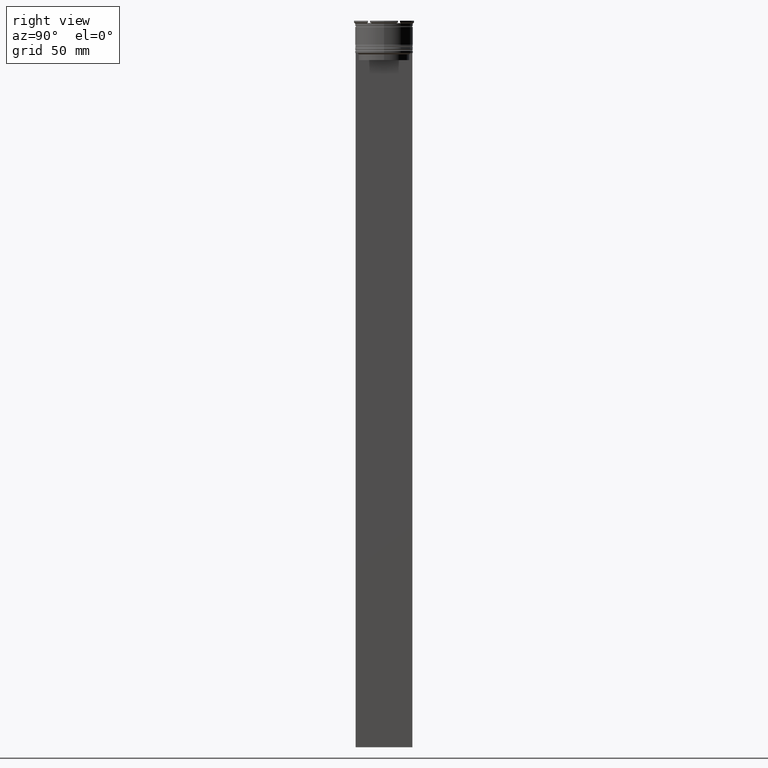
[diagram: clean part render]
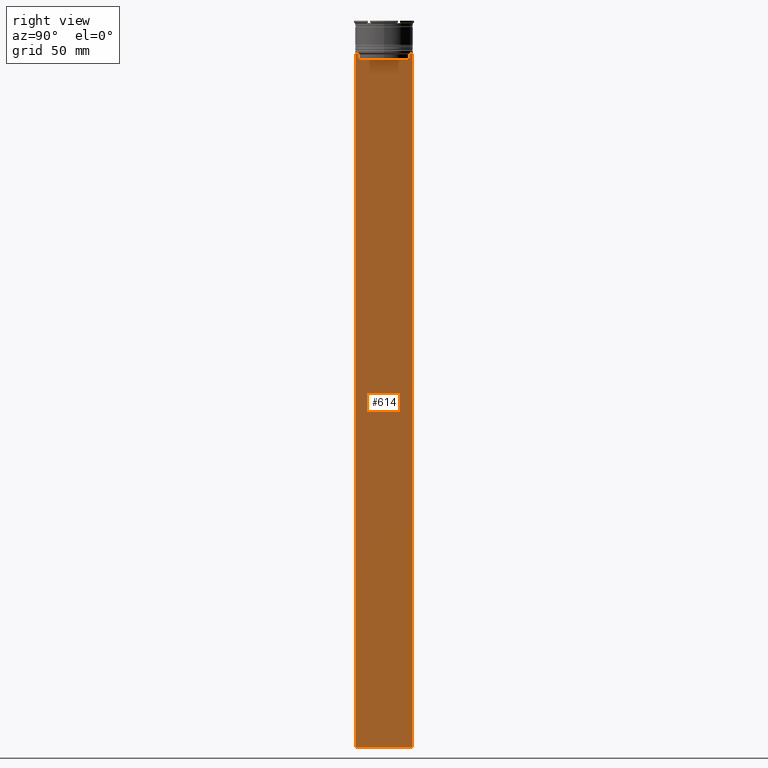
[diagram: same view with one face highlighted and labeled with its STEP entity id]
A machine part, right view. The second image highlights one B-rep face of the part: STEP entity #614.
In plain terms, the highlighted planar face has unit normal (-1, 0, 0).
Its self-contained STEP definition (entity closure, byte-faithful):
#8 = CARTESIAN_POINT ( 'NONE',  ( 0.5000000000000002220, -10.88852607105296322, -14.50000000000000000 ) ) ;
#17 = DIRECTION ( 'NONE',  ( -1.000000000000000000, 0.000000000000000000, 0.000000000000000000 ) ) ;
#20 = VERTEX_POINT ( 'NONE', #8 ) ;
#25 = LINE ( 'NONE', #627, #161 ) ;
#73 = CARTESIAN_POINT ( 'NONE',  ( 0.5000000000000002220, 10.88852607105296322, 0.000000000000000000 ) ) ;
#161 = VECTOR ( 'NONE', #2376, 1000.000000000000000 ) ;
#169 = CARTESIAN_POINT ( 'NONE',  ( 0.5000000000000002220, -12.25000000000000711, -14.00000000000000178 ) ) ;
#201 = ORIENTED_EDGE ( 'NONE', *, *, #673, .T. ) ;
#266 = ORIENTED_EDGE ( 'NONE', *, *, #1867, .T. ) ;
#336 = EDGE_CURVE ( 'NONE', #1416, #918, #1656, .T. ) ;
#376 = DIRECTION ( 'NONE',  ( 0.000000000000000000, 0.000000000000000000, -1.000000000000000000 ) ) ;
#455 = CARTESIAN_POINT ( 'NONE',  ( 0.5000000000000002220, -12.25000000000000711, -14.00000000000000178 ) ) ;
#479 = DIRECTION ( 'NONE',  ( 0.000000000000000000, 0.000000000000000000, -1.000000000000000000 ) ) ;
#492 = CARTESIAN_POINT ( 'NONE',  ( 0.5000000000000002220, -12.25000000000000711, 10.52039967047845792 ) ) ;
#493 = CARTESIAN_POINT ( 'NONE',  ( 0.5000000000000002220, -10.88852607105296144, -17.00000000000000000 ) ) ;
#503 = CARTESIAN_POINT ( 'NONE',  ( 0.5000000000000002220, 11.38902980942626719, -14.00000000000000178 ) ) ;
#512 = CARTESIAN_POINT ( 'NONE',  ( 0.5000000000000002220, -11.22219891450652973, -14.16667035398018903 ) ) ;
#529 = LINE ( 'NONE', #2049, #2341 ) ;
#561 = CARTESIAN_POINT ( 'NONE',  ( 0.5000000000000002220, -10.88852607105296322, 0.000000000000000000 ) ) ;
#569 = VERTEX_POINT ( 'NONE', #1537 ) ;
#601 = VERTEX_POINT ( 'NONE', #914 ) ;
#614 = ADVANCED_FACE ( 'NONE', ( #698 ), #2438, .F. ) ;
#624 = CARTESIAN_POINT ( 'NONE',  ( 0.5000000000000002220, 11.38902980942626719, -14.00000000000000178 ) ) ;
#627 = CARTESIAN_POINT ( 'NONE',  ( 0.5000000000000002220, -12.25000000000000711, -314.0000000000000000 ) ) ;
#631 = EDGE_CURVE ( 'NONE', #20, #601, #2673, .T. ) ;
#669 = EDGE_CURVE ( 'NONE', #1688, #20, #2330, .T. ) ;
#673 = EDGE_CURVE ( 'NONE', #918, #714, #978, .T. ) ;
#698 = FACE_OUTER_BOUND ( 'NONE', #1552, .T. ) ;
#714 = VERTEX_POINT ( 'NONE', #2100 ) ;
#833 = CARTESIAN_POINT ( 'NONE',  ( 0.5000000000000002220, 10.88852607105296144, -17.00000000000000000 ) ) ;
#914 = CARTESIAN_POINT ( 'NONE',  ( 0.5000000000000002220, -11.38902980942626719, -14.00000000000000178 ) ) ;
#918 = VERTEX_POINT ( 'NONE', #624 ) ;
#925 = DIRECTION ( 'NONE',  ( 0.000000000000000000, 0.000000000000000000, 1.000000000000000000 ) ) ;
#935 = DIRECTION ( 'NONE',  ( 0.000000000000000000, 0.000000000000000000, -1.000000000000000000 ) ) ;
#942 = DIRECTION ( 'NONE',  ( -0.000000000000000000, -0.000000000000000000, 1.000000000000000000 ) ) ;
#978 = B_SPLINE_CURVE_WITH_KNOTS ( 'NONE', 3,
 ( #503, #2724, #2505, #1372 ),
 .UNSPECIFIED., .F., .F.,
 ( 4, 4 ),
 ( 0.01935560801904634073, 0.02006307108468586772 ),
 .UNSPECIFIED. ) ;
#1024 = CARTESIAN_POINT ( 'NONE',  ( 0.5000000000000002220, 10.90000000000000213, -17.00000000000000000 ) ) ;
#1044 = VERTEX_POINT ( 'NONE', #2768 ) ;
#1053 = CARTESIAN_POINT ( 'NONE',  ( 0.5000000000000002220, 12.24999999999999289, -14.00000000000000178 ) ) ;
#1085 = ORIENTED_EDGE ( 'NONE', *, *, #1803, .T. ) ;
#1287 = EDGE_CURVE ( 'NONE', #714, #2359, #1812, .T. ) ;
#1372 = CARTESIAN_POINT ( 'NONE',  ( 0.5000000000000002220, 10.88852607105296322, -14.50000000000000000 ) ) ;
#1374 = DIRECTION ( 'NONE',  ( 0.000000000000000000, -1.000000000000000000, 0.000000000000000000 ) ) ;
#1416 = VERTEX_POINT ( 'NONE', #1053 ) ;
#1466 = CARTESIAN_POINT ( 'NONE',  ( 0.5000000000000002220, -10.88852607105296322, -14.50000000000000000 ) ) ;
#1471 = VERTEX_POINT ( 'NONE', #455 ) ;
#1477 = ORIENTED_EDGE ( 'NONE', *, *, #631, .T. ) ;
#1481 = VECTOR ( 'NONE', #1686, 1000.000000000000000 ) ;
#1537 = CARTESIAN_POINT ( 'NONE',  ( 0.5000000000000002220, -12.25000000000000711, -314.0000000000000000 ) ) ;
#1552 = EDGE_LOOP ( 'NONE', ( #1729, #201, #2013, #2681, #1898, #1477, #2233, #1085, #266, #1806 ) ) ;
#1656 = LINE ( 'NONE', #169, #1481 ) ;
#1686 = DIRECTION ( 'NONE',  ( 0.000000000000000000, -1.000000000000000000, 0.000000000000000000 ) ) ;
#1688 = VERTEX_POINT ( 'NONE', #493 ) ;
#1729 = ORIENTED_EDGE ( 'NONE', *, *, #336, .T. ) ;
#1754 = VECTOR ( 'NONE', #376, 1000.000000000000000 ) ;
#1803 = EDGE_CURVE ( 'NONE', #1471, #569, #2494, .T. ) ;
#1806 = ORIENTED_EDGE ( 'NONE', *, *, #2331, .F. ) ;
#1812 = LINE ( 'NONE', #73, #2433 ) ;
#1867 = EDGE_CURVE ( 'NONE', #569, #1044, #25, .T. ) ;
#1874 = CARTESIAN_POINT ( 'NONE',  ( 0.5000000000000002220, -11.38902980942626719, -14.00000000000000178 ) ) ;
#1897 = DIRECTION ( 'NONE',  ( 0.000000000000000000, -1.000000000000000000, 0.000000000000000000 ) ) ;
#1898 = ORIENTED_EDGE ( 'NONE', *, *, #669, .T. ) ;
#1906 = LINE ( 'NONE', #2769, #2391 ) ;
#1982 = VECTOR ( 'NONE', #942, 1000.000000000000000 ) ;
#2013 = ORIENTED_EDGE ( 'NONE', *, *, #1287, .T. ) ;
#2049 = CARTESIAN_POINT ( 'NONE',  ( 0.5000000000000002220, -12.25000000000000711, -14.00000000000000178 ) ) ;
#2100 = CARTESIAN_POINT ( 'NONE',  ( 0.5000000000000002220, 10.88852607105296322, -14.50000000000000000 ) ) ;
#2233 = ORIENTED_EDGE ( 'NONE', *, *, #2455, .T. ) ;
#2295 = LINE ( 'NONE', #1024, #2567 ) ;
#2320 = CARTESIAN_POINT ( 'NONE',  ( 0.5000000000000002220, -12.25000000000000711, 10.52039967047845792 ) ) ;
#2330 = LINE ( 'NONE', #561, #1982 ) ;
#2331 = EDGE_CURVE ( 'NONE', #1416, #1044, #1906, .T. ) ;
#2341 = VECTOR ( 'NONE', #1374, 1000.000000000000000 ) ;
#2359 = VERTEX_POINT ( 'NONE', #833 ) ;
#2376 = DIRECTION ( 'NONE',  ( 0.000000000000000000, 1.000000000000000000, 0.000000000000000000 ) ) ;
#2384 = AXIS2_PLACEMENT_3D ( 'NONE', #492, #17, #925 ) ;
#2391 = VECTOR ( 'NONE', #479, 1000.000000000000000 ) ;
#2433 = VECTOR ( 'NONE', #935, 1000.000000000000000 ) ;
#2438 = PLANE ( 'NONE',  #2384 ) ;
#2455 = EDGE_CURVE ( 'NONE', #601, #1471, #529, .T. ) ;
#2494 = LINE ( 'NONE', #2320, #1754 ) ;
#2505 = CARTESIAN_POINT ( 'NONE',  ( 0.5000000000000002220, 11.05536450345590538, -14.33333719074559376 ) ) ;
#2524 = CARTESIAN_POINT ( 'NONE',  ( 0.5000000000000002220, -11.05536450423839057, -14.33333718996393280 ) ) ;
#2567 = VECTOR ( 'NONE', #1897, 1000.000000000000000 ) ;
#2659 = EDGE_CURVE ( 'NONE', #2359, #1688, #2295, .T. ) ;
#2673 = B_SPLINE_CURVE_WITH_KNOTS ( 'NONE', 3,
 ( #1466, #2524, #512, #1874 ),
 .UNSPECIFIED., .F., .F.,
 ( 4, 4 ),
 ( 0.05041323384703228633, 0.05112713601261608537 ),
 .UNSPECIFIED. ) ;
#2681 = ORIENTED_EDGE ( 'NONE', *, *, #2659, .T. ) ;
#2724 = CARTESIAN_POINT ( 'NONE',  ( 0.5000000000000002220, 11.22219891375843304, -14.16667035472756808 ) ) ;
#2768 = CARTESIAN_POINT ( 'NONE',  ( 0.5000000000000002220, 12.24999999999999289, -314.0000000000000000 ) ) ;
#2769 = CARTESIAN_POINT ( 'NONE',  ( 0.5000000000000002220, 12.24999999999999289, 10.52039967047845792 ) ) ;